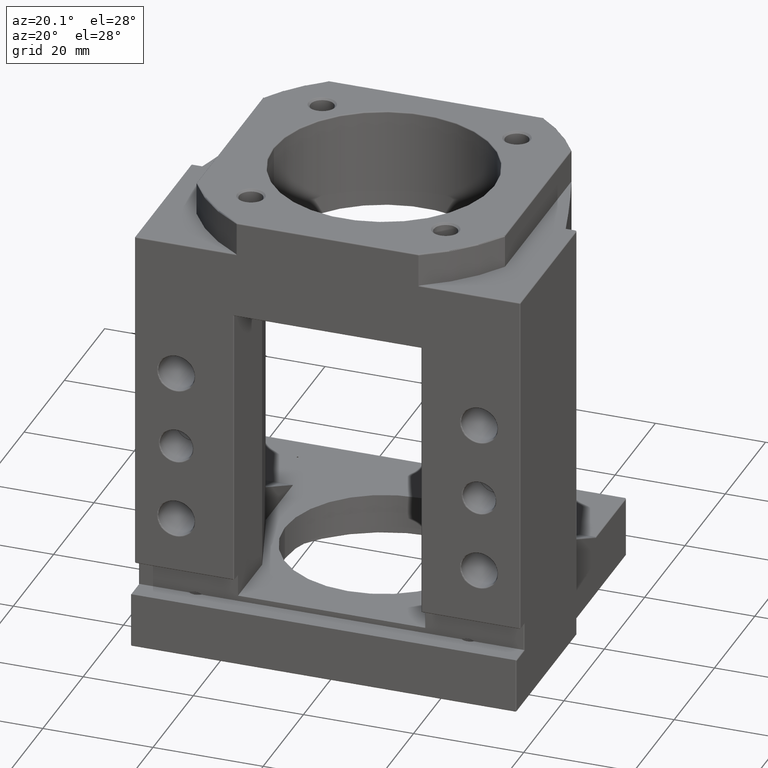
[diagram: clean part render]
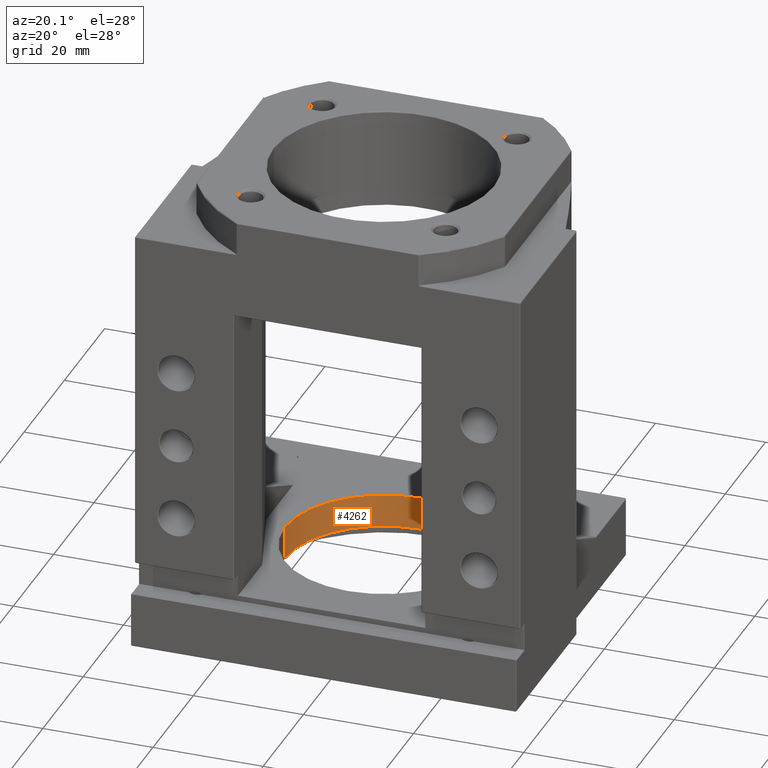
[diagram: same view with one face highlighted and labeled with its STEP entity id]
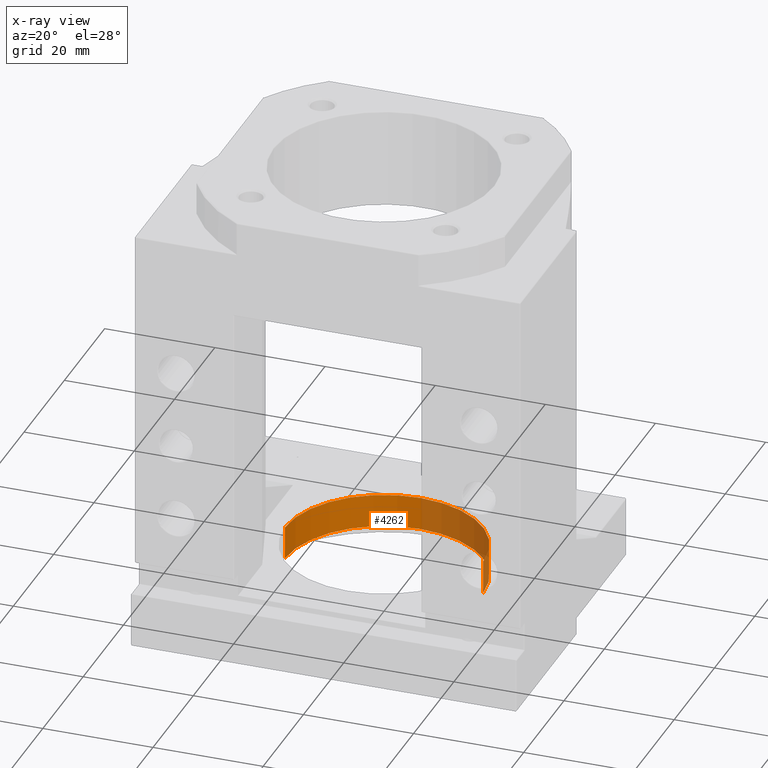
[diagram: x-ray of the same camera — body ghosted, the highlighted face saturated]
A machine part, auxiliary view. The second image highlights one B-rep face of the part: STEP entity #4262.
The next image is the same camera in x-ray: the body ghosted, the highlighted face saturated — about 35% of this face is hidden behind the body in this view.
In plain terms, the highlighted cylindrical surface (partial cylindrical patch) has radius 18 mm, axis along (-0, -0, -1).
Its self-contained STEP definition (entity closure, byte-faithful):
#23 = ORIENTED_EDGE ( 'NONE', *, *, #6140, .T. ) ;
#24 = ORIENTED_EDGE ( 'NONE', *, *, #6053, .F. ) ;
#25 = ORIENTED_EDGE ( 'NONE', *, *, #6432, .T. ) ;
#26 = ORIENTED_EDGE ( 'NONE', *, *, #6067, .T. ) ;
#487 = VERTEX_POINT ( 'NONE', #5761 ) ;
#488 = VERTEX_POINT ( 'NONE', #5760 ) ;
#491 = VERTEX_POINT ( 'NONE', #5824 ) ;
#495 = VERTEX_POINT ( 'NONE', #5791 ) ;
#725 = EDGE_LOOP ( 'NONE', ( #24, #25, #26, #23 ) ) ;
#1360 = FACE_OUTER_BOUND ( 'NONE', #725, .T. ) ;
#1361 = CYLINDRICAL_SURFACE ( 'NONE', #4453, 18.00000000000000000 ) ;
#1631 = LINE ( 'NONE', #3355, #5083 ) ;
#1639 = LINE ( 'NONE', #3390, #5105 ) ;
#3355 = CARTESIAN_POINT ( 'NONE',  ( 18.00000000000000000, 2.204364238465235400E-015, 5.500000000000000000 ) ) ;
#3356 = DIRECTION ( 'NONE',  ( -0.0000000000000000000, -0.0000000000000000000, -1.000000000000000000 ) ) ;
#3390 = CARTESIAN_POINT ( 'NONE',  ( -18.00000000000000000, 0.0000000000000000000, 5.500000000000000000 ) ) ;
#3391 = DIRECTION ( 'NONE',  ( -0.0000000000000000000, -0.0000000000000000000, -1.000000000000000000 ) ) ;
#3562 = CARTESIAN_POINT ( 'NONE',  ( 0.0000000000000000000, 0.0000000000000000000, -0.4999999999999995600 ) ) ;
#3563 = DIRECTION ( 'NONE',  ( 0.0000000000000000000, 0.0000000000000000000, -1.000000000000000000 ) ) ;
#3564 = DIRECTION ( 'NONE',  ( -1.000000000000000000, 0.0000000000000000000, 0.0000000000000000000 ) ) ;
#3601 = CARTESIAN_POINT ( 'NONE',  ( 0.0000000000000000000, 0.0000000000000000000, 5.500000000000000000 ) ) ;
#3602 = DIRECTION ( 'NONE',  ( 0.0000000000000000000, 0.0000000000000000000, 1.000000000000000000 ) ) ;
#3603 = DIRECTION ( 'NONE',  ( 1.000000000000000000, 0.0000000000000000000, 0.0000000000000000000 ) ) ;
#4262 = ADVANCED_FACE ( 'NONE', ( #1360 ), #1361, .F. ) ;
#4453 = AXIS2_PLACEMENT_3D ( 'NONE', #4614, #4512, #4513 ) ;
#4512 = DIRECTION ( 'NONE',  ( -0.0000000000000000000, -0.0000000000000000000, -1.000000000000000000 ) ) ;
#4513 = DIRECTION ( 'NONE',  ( -1.000000000000000000, 0.0000000000000000000, 0.0000000000000000000 ) ) ;
#4614 = CARTESIAN_POINT ( 'NONE',  ( 0.0000000000000000000, 0.0000000000000000000, 5.500000000000000000 ) ) ;
#5083 = VECTOR ( 'NONE', #3356, 1000.000000000000000 ) ;
#5105 = VECTOR ( 'NONE', #3391, 1000.000000000000000 ) ;
#5193 = CIRCLE ( 'NONE', #5201, 18.00000000000000000 ) ;
#5199 = CIRCLE ( 'NONE', #5226, 18.00000000000000000 ) ;
#5201 = AXIS2_PLACEMENT_3D ( 'NONE', #3562, #3563, #3564 ) ;
#5226 = AXIS2_PLACEMENT_3D ( 'NONE', #3601, #3602, #3603 ) ;
#5760 = CARTESIAN_POINT ( 'NONE',  ( 18.00000000000000000, 2.204364238465235400E-015, -0.4999999999999995600 ) ) ;
#5761 = CARTESIAN_POINT ( 'NONE',  ( -18.00000000000000000, 0.0000000000000000000, -0.4999999999999995600 ) ) ;
#5791 = CARTESIAN_POINT ( 'NONE',  ( -18.00000000000000000, 0.0000000000000000000, 5.500000000000000000 ) ) ;
#5824 = CARTESIAN_POINT ( 'NONE',  ( 18.00000000000000000, 2.204364238465235400E-015, 5.500000000000000000 ) ) ;
#6053 = EDGE_CURVE ( 'NONE', #491, #488, #1631, .T. ) ;
#6067 = EDGE_CURVE ( 'NONE', #495, #487, #1639, .T. ) ;
#6140 = EDGE_CURVE ( 'NONE', #487, #488, #5193, .T. ) ;
#6432 = EDGE_CURVE ( 'NONE', #491, #495, #5199, .T. ) ;